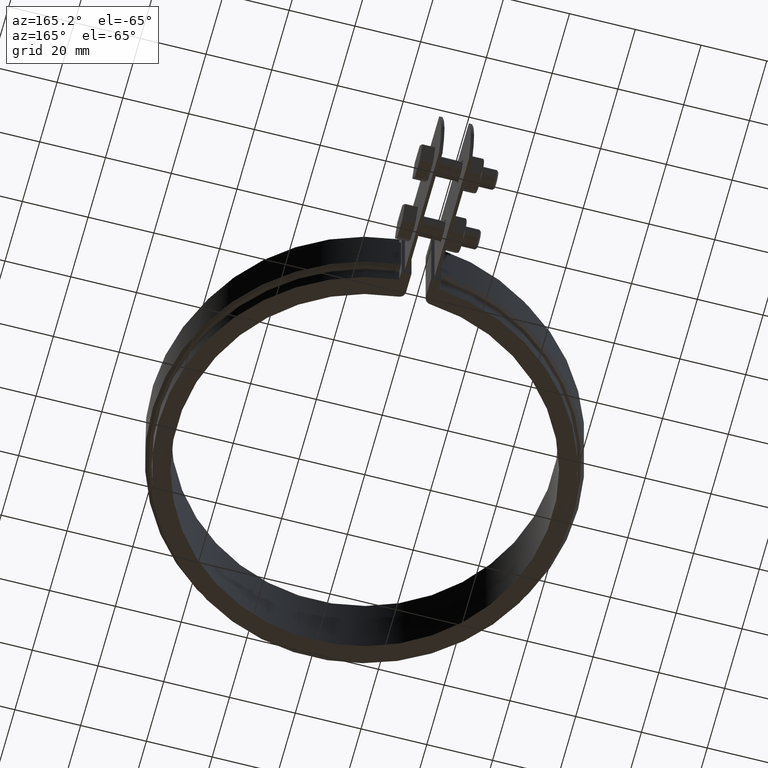
[diagram: clean part render]
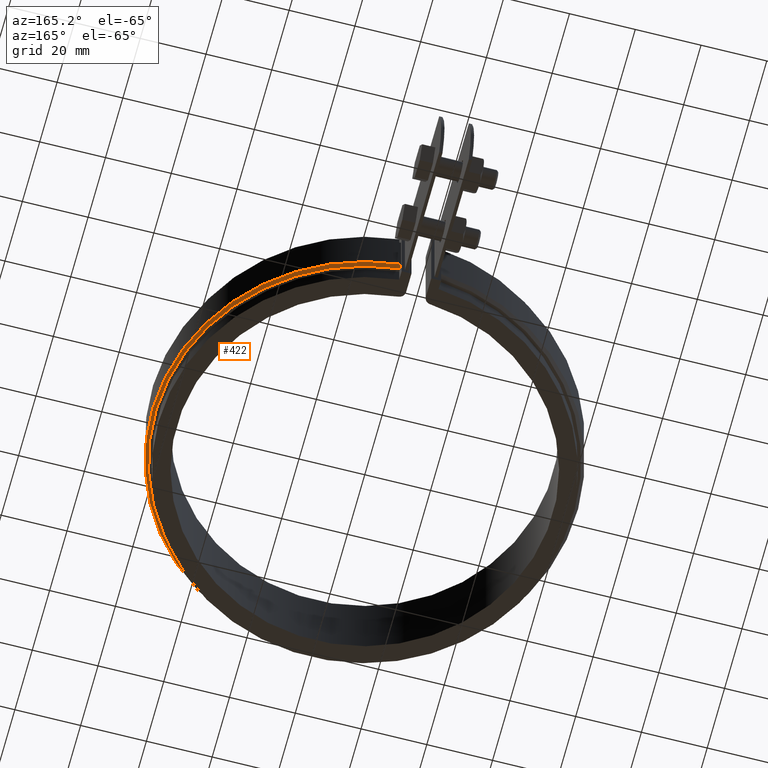
[diagram: same view with one face highlighted and labeled with its STEP entity id]
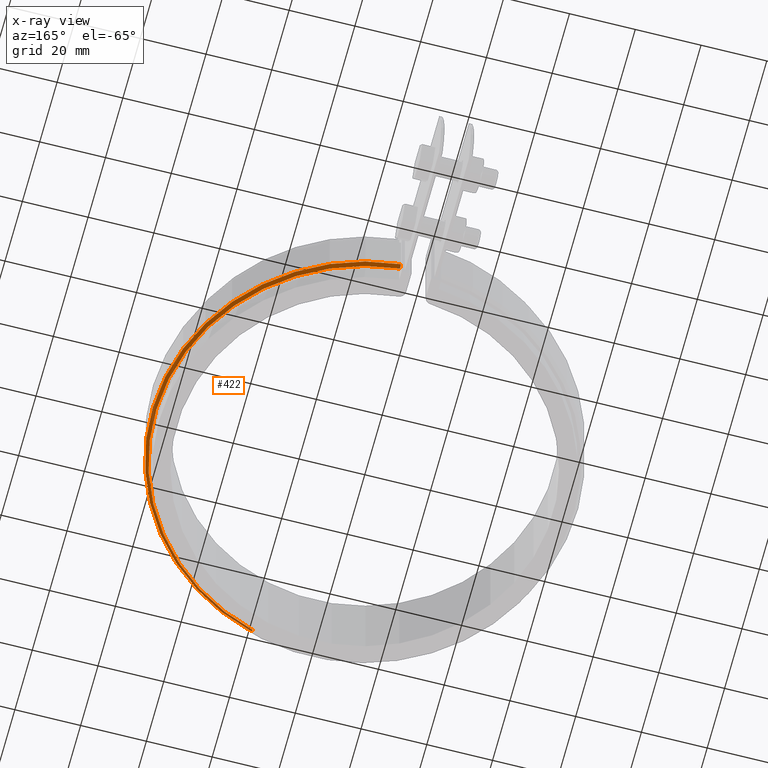
[diagram: x-ray of the same camera — body ghosted, the highlighted face saturated]
A machine part, auxiliary view. The second image highlights one B-rep face of the part: STEP entity #422.
The next image is the same camera in x-ray: the body ghosted, the highlighted face saturated — about 0% of this face is hidden behind the body in this view.
In plain terms, the highlighted conical surface has half-angle 45 deg.
Its self-contained STEP definition (entity closure, byte-faithful):
#422 = ADVANCED_FACE( '', ( #736 ), #737, .T. );
#736 = FACE_OUTER_BOUND( '', #1588, .T. );
#737 = CONICAL_SURFACE( '', #1589, 63.6500000000000, 0.785398163397449 );
#1588 = EDGE_LOOP( '', ( #3244, #3245, #3246, #3247 ) );
#1589 = AXIS2_PLACEMENT_3D( '', #3248, #3249, #3250 );
#3244 = ORIENTED_EDGE( '', *, *, #4092, .F. );
#3245 = ORIENTED_EDGE( '', *, *, #4142, .F. );
#3246 = ORIENTED_EDGE( '', *, *, #4163, .F. );
#3247 = ORIENTED_EDGE( '', *, *, #4153, .F. );
#3248 = CARTESIAN_POINT( '', ( 0.000000000000000, 1.38777878078145E-014, -8.50000000000000 ) );
#3249 = DIRECTION( '', ( 0.000000000000000, 0.000000000000000, 1.00000000000000 ) );
#3250 = DIRECTION( '', ( 1.00000000000000, 0.000000000000000, 0.000000000000000 ) );
#4092 = EDGE_CURVE( '', #4758, #4761, #4762, .T. );
#4142 = EDGE_CURVE( '', #4837, #4758, #4839, .T. );
#4153 = EDGE_CURVE( '', #4761, #4852, #4856, .F. );
#4163 = EDGE_CURVE( '', #4852, #4837, #4868, .T. );
#4758 = VERTEX_POINT( '', #7390 );
#4761 = VERTEX_POINT( '', #7394 );
#4762 = B_SPLINE_CURVE_WITH_KNOTS( '', 3, ( #7395, #7396, #7397, #7398 ), .UNSPECIFIED., .F., .F., ( 4, 4 ), ( 0.000000000000000, 0.00141733050374559 ), .UNSPECIFIED. );
#4837 = VERTEX_POINT( '', #7519 );
#4839 = CIRCLE( '', #7522, 64.6500000000000 );
#4852 = VERTEX_POINT( '', #7541 );
#4856 = CIRCLE( '', #7546, 63.6500000000000 );
#4868 = LINE( '', #7565, #7566 );
#7390 = CARTESIAN_POINT( '', ( 6.00000000000001, 64.3709756023629, -7.50000000000000 ) );
#7394 = CARTESIAN_POINT( '', ( 6.00000000000001, 63.3665724179555, -8.50000000000000 ) );
#7395 = CARTESIAN_POINT( '', ( 6.00000000000001, 64.3709756023629, -7.50000000000000 ) );
#7396 = CARTESIAN_POINT( '', ( 6.00000000000001, 64.0361859169224, -7.83334475906281 ) );
#7397 = CARTESIAN_POINT( '', ( 6.00000000000001, 63.7013850345734, -8.16667827309721 ) );
#7398 = CARTESIAN_POINT( '', ( 6.00000000000001, 63.3665724179555, -8.50000000000000 ) );
#7519 = CARTESIAN_POINT( '', ( 18.1643848332456, -62.0457703927492, -7.50000000000000 ) );
#7522 = AXIS2_PLACEMENT_3D( '', #8411, #8412, #8413 );
#7541 = CARTESIAN_POINT( '', ( 17.8834198706277, -61.0860523665659, -8.50000000000000 ) );
#7546 = AXIS2_PLACEMENT_3D( '', #8430, #8431, #8432 );
#7565 = CARTESIAN_POINT( '', ( 17.8834198706277, -61.0860523665659, -8.50000000000000 ) );
#7566 = VECTOR( '', #8446, 1000.00000000000 );
#8411 = CARTESIAN_POINT( '', ( 0.000000000000000, 1.38777878078145E-014, -7.50000000000000 ) );
#8412 = DIRECTION( '', ( 0.000000000000000, 0.000000000000000, 1.00000000000000 ) );
#8413 = DIRECTION( '', ( 1.00000000000000, 0.000000000000000, 0.000000000000000 ) );
#8430 = CARTESIAN_POINT( '', ( 0.000000000000000, 1.38777878078145E-014, -8.50000000000000 ) );
#8431 = DIRECTION( '', ( 0.000000000000000, 0.000000000000000, 1.00000000000000 ) );
#8432 = DIRECTION( '', ( 1.00000000000000, 0.000000000000000, 0.000000000000000 ) );
#8446 = DIRECTION( '', ( 0.198672230342925, -0.678623124341168, 0.707106781186547 ) );